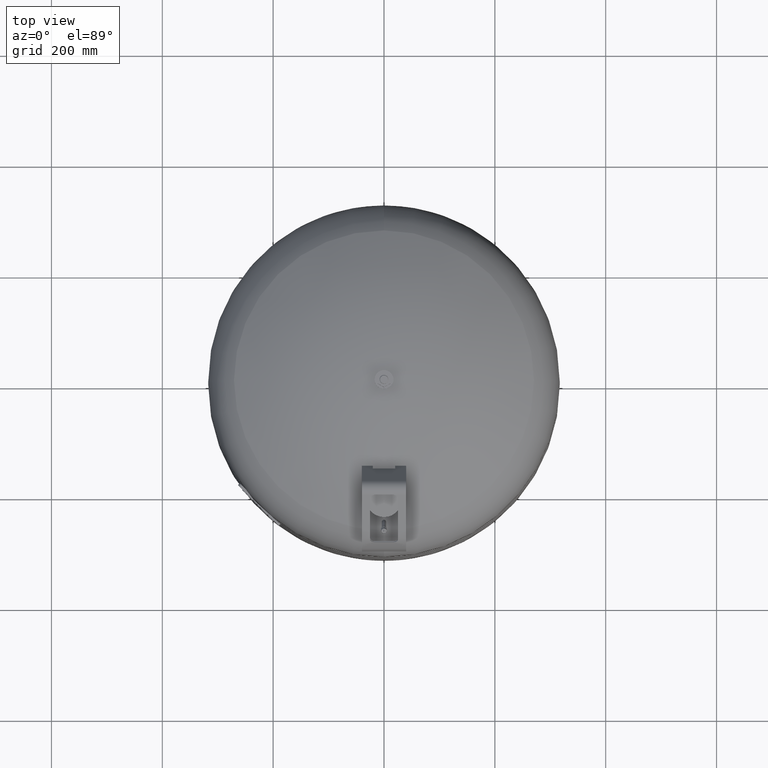
[diagram: clean part render]
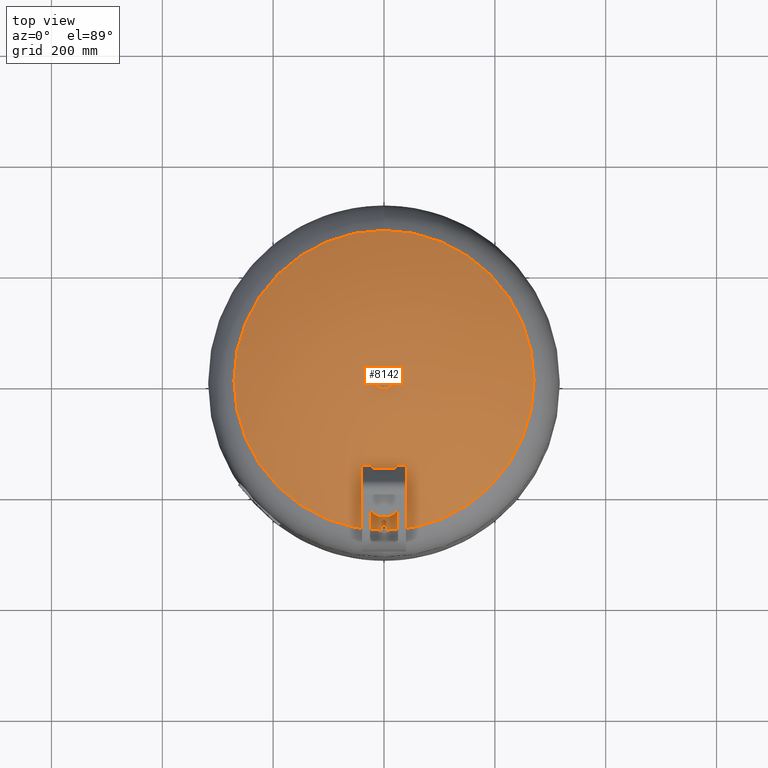
[diagram: same view with one face highlighted and labeled with its STEP entity id]
A machine part, top view. The second image highlights one B-rep face of the part: STEP entity #8142.
In plain terms, the highlighted spherical surface has radius 509 mm.
Its self-contained STEP definition (entity closure, byte-faithful):
#8081=CARTESIAN_POINT('',(8.065826E-015,270.639024390243830,860.086439681297630));
#8082=VERTEX_POINT('',#8081);
#8098=CARTESIAN_POINT('',(-2.507680E-014,-270.639024390243830,860.086439681297410));
#8099=VERTEX_POINT('',#8098);
#8107=CARTESIAN_POINT('',(-270.639024390243830,2.385415E-014,860.086439681297630));
#8108=VERTEX_POINT('',#8107);
#8109=CARTESIAN_POINT('',(-7.495146E-015,2.385415E-014,860.086439681297520));
#8110=DIRECTION('',(0.0,0.0,-1.0));
#8111=DIRECTION('',(-1.0,0.0,0.0));
#8112=AXIS2_PLACEMENT_3D('',#8109,#8110,#8111);
#8113=CIRCLE('',#8112,270.639024390243830);
#8114=EDGE_CURVE('',#8099,#8108,#8113,.T.);
#8116=CARTESIAN_POINT('',(-7.495146E-015,2.385415E-014,860.086439681297520));
#8117=DIRECTION('',(0.0,0.0,-1.0));
#8118=DIRECTION('',(-1.0,0.0,0.0));
#8119=AXIS2_PLACEMENT_3D('',#8116,#8117,#8118);
#8120=CIRCLE('',#8119,270.639024390243830);
#8121=EDGE_CURVE('',#8108,#8082,#8120,.T.);
#8126=CARTESIAN_POINT('',(-1.005746E-013,1.558363E-013,428.999999999999940));
#8127=DIRECTION('',(0.0,1.0,0.0));
#8128=DIRECTION('',(1.0,0.0,0.0));
#8129=AXIS2_PLACEMENT_3D('',#8126,#8127,#8128);
#8130=SPHERICAL_SURFACE('',#8129,509.000000000000060);
#8131=ORIENTED_EDGE('',*,*,#8121,.F.);
#8132=ORIENTED_EDGE('',*,*,#8114,.F.);
#8133=CARTESIAN_POINT('',(-7.495146E-015,2.385415E-014,860.086439681297520));
#8134=DIRECTION('',(0.0,0.0,-1.0));
#8135=DIRECTION('',(-1.0,0.0,0.0));
#8136=AXIS2_PLACEMENT_3D('',#8133,#8134,#8135);
#8137=CIRCLE('',#8136,270.639024390243830);
#8138=EDGE_CURVE('',#8082,#8099,#8137,.T.);
#8139=ORIENTED_EDGE('',*,*,#8138,.F.);
#8140=EDGE_LOOP('',(#8131,#8132,#8139));
#8141=FACE_OUTER_BOUND('',#8140,.T.);
#8142=ADVANCED_FACE('',(#8141),#8130,.T.);